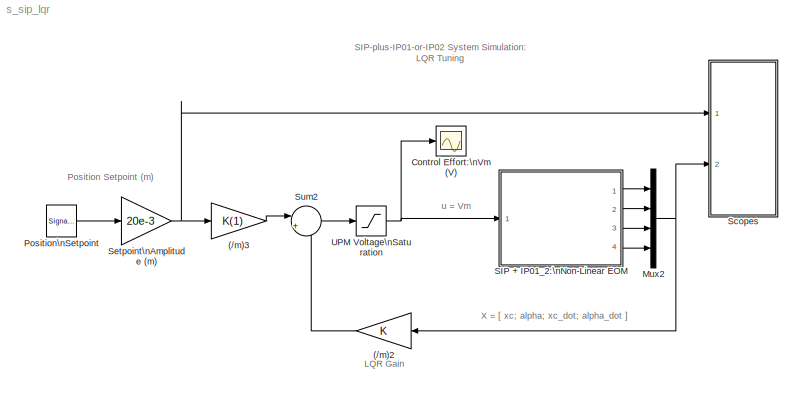
MODEL s_sip_lqr
KIND model
CONFIG AbsTol = 1e-6
CONFIG FixedStep = 0.001
CONFIG MaxStep = auto
CONFIG MinStep = auto
CONFIG RelTol = 1e-3
CONFIG Solver = ode4
CONFIG SolverMode = SingleTasking
CONFIG StartTime = 0.0
CONFIG StopTime = 5
BLOCK [Gain] (//m)2
  Gain = K
  Multiplication = Matrix(K*u)
  SaturateOnIntegerOverflow = on
BLOCK [Gain] (//m)3
  Gain = K(1)
  Multiplication = Element-wise(K.*u)
  SaturateOnIntegerOverflow = on
BLOCK [Scope] Control Effort:\nVm (V)
  DataFormat = Array
  Decimation = 1
  Floating = off
  Grid = on
  LimitDataPoints = on
  MaxDataPoints = 5000
  NumInputPorts = 1
  Ports = [1]
  SampleInput = off
  SampleTime = 0
  SaveName = ScopeData2
  SaveToWorkspace = off
  TickLabels = on
  TimeRange = 5
  YMax = 35
  YMin = -35
  ZoomMode = on
BLOCK [Mux] Mux2
  DisplayOption = bar
  Inputs = 4
  Ports = [4, 1]
BLOCK [SignalGenerator] Position\nSetpoint
  Amplitude = 1
  Frequency = 0.2
  Units = Hertz
  VectorParams1D = on
  WaveForm = square
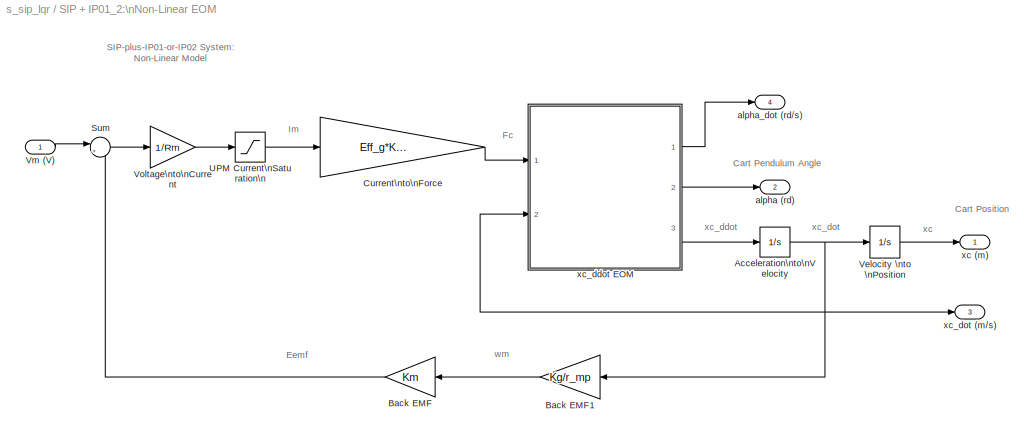
BLOCK [SubSystem] SIP + IP01_2:\nNon-Linear EOM
  Ports = [1, 4]
  RTWFcnNameOpts = Auto
  RTWFileNameOpts = Auto
  RTWSystemCode = Auto
  ShowPortLabels = on
  TreatAsAtomicUnit = off
BLOCK [Integrator] SIP + IP01_2:\nNon-Linear EOM/Acceleration\nto\nVelocity
  AbsoluteTolerance = auto
  ExternalReset = none
  InitialCondition = 0
  InitialConditionSource = internal
  LimitOutput = off
  LowerSaturationLimit = -inf
  Ports = [1, 1]
  ShowSaturationPort = off
  ShowStatePort = off
  UpperSaturationLimit = inf
BLOCK [Gain] SIP + IP01_2:\nNon-Linear EOM/Back EMF
  Gain = Km
  Multiplication = Element-wise(K.*u)
  SaturateOnIntegerOverflow = on
BLOCK [Gain] SIP + IP01_2:\nNon-Linear EOM/Back EMF1
  Gain = Kg/r_mp
  Multiplication = Element-wise(K.*u)
  SaturateOnIntegerOverflow = on
BLOCK [Gain] SIP + IP01_2:\nNon-Linear EOM/Current\nto\nForce
  Gain = Eff_g*Kg*Eff_m*Kt/r_mp
  Multiplication = Element-wise(K.*u)
  SaturateOnIntegerOverflow = on
BLOCK [Sum] SIP + IP01_2:\nNon-Linear EOM/Sum
  IconShape = round
  Inputs = |+-
  Ports = [2, 1]
  SaturateOnIntegerOverflow = on
BLOCK [Saturate] SIP + IP01_2:\nNon-Linear EOM/UPM Current\nSaturation\n
  LinearizeAsGain = on
  LowerLimit = - IMAX_UPM
  UpperLimit = IMAX_UPM
BLOCK [Integrator] SIP + IP01_2:\nNon-Linear EOM/Velocity \nto \nPosition
  AbsoluteTolerance = auto
  ExternalReset = none
  InitialCondition = 0
  InitialConditionSource = internal
  LimitOutput = off
  LowerSaturationLimit = -inf
  Ports = [1, 1]
  ShowSaturationPort = off
  ShowStatePort = off
  UpperSaturationLimit = inf
BLOCK [Inport] SIP + IP01_2:\nNon-Linear EOM/Vm (V)
  Interpolate = on
  LatchInput = off
  Port = 1
BLOCK [Gain] SIP + IP01_2:\nNon-Linear EOM/Voltage\nto\nCurrent
  Gain = 1/Rm
  Multiplication = Element-wise(K.*u)
  SaturateOnIntegerOverflow = on
BLOCK [Outport] SIP + IP01_2:\nNon-Linear EOM/alpha (rd)
  InitialOutput = []
  OutputWhenDisabled = held
  Port = 2
BLOCK [Outport] SIP + IP01_2:\nNon-Linear EOM/alpha_dot (rd//s)
  InitialOutput = 0
  OutputWhenDisabled = held
  Port = 4
BLOCK [Outport] SIP + IP01_2:\nNon-Linear EOM/xc (m)
  InitialOutput = []
  OutputWhenDisabled = held
  Port = 1
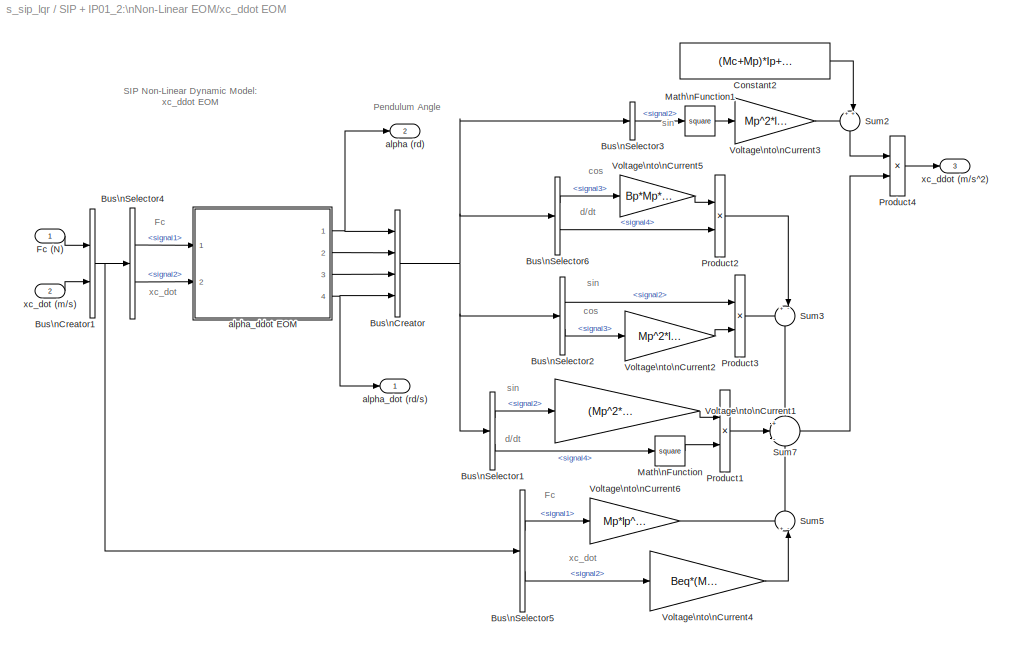
BLOCK [SubSystem] SIP + IP01_2:\nNon-Linear EOM/xc_ddot EOM
  Ports = [2, 3]
  RTWFcnNameOpts = Auto
  RTWFileNameOpts = Auto
  RTWSystemCode = Auto
  ShowPortLabels = on
  TreatAsAtomicUnit = off
BLOCK [BusCreator] SIP + IP01_2:\nNon-Linear EOM/xc_ddot EOM/Bus\nCreator
  DisplayOption = bar
  Inputs = 4
  Ports = [4, 1]
BLOCK [BusCreator] SIP + IP01_2:\nNon-Linear EOM/xc_ddot EOM/Bus\nCreator1
  DisplayOption = bar
  Inputs = 2
  Ports = [2, 1]
BLOCK [BusSelector] SIP + IP01_2:\nNon-Linear EOM/xc_ddot EOM/Bus\nSelector1
  MuxedOutput = off
  OutputSignals = signal2,signal4
  Ports = [1, 2]
BLOCK [BusSelector] SIP + IP01_2:\nNon-Linear EOM/xc_ddot EOM/Bus\nSelector2
  MuxedOutput = off
  OutputSignals = signal2,signal3
  Ports = [1, 2]
BLOCK [BusSelector] SIP + IP01_2:\nNon-Linear EOM/xc_ddot EOM/Bus\nSelector3
  MuxedOutput = off
  OutputSignals = signal2
  Ports = [1, 1]
BLOCK [BusSelector] SIP + IP01_2:\nNon-Linear EOM/xc_ddot EOM/Bus\nSelector4
  MuxedOutput = off
  OutputSignals = signal1,signal2
  Ports = [1, 2]
BLOCK [BusSelector] SIP + IP01_2:\nNon-Linear EOM/xc_ddot EOM/Bus\nSelector5
  MuxedOutput = off
  OutputSignals = signal1,signal2
  Ports = [1, 2]
BLOCK [BusSelector] SIP + IP01_2:\nNon-Linear EOM/xc_ddot EOM/Bus\nSelector6
  MuxedOutput = off
  OutputSignals = signal3,signal4
  Ports = [1, 2]
BLOCK [Constant] SIP + IP01_2:\nNon-Linear EOM/xc_ddot EOM/Constant2
  Value = (Mc+Mp)*Ip+Mc*Mp*lp^2
  VectorParams1D = on
BLOCK [Inport] SIP + IP01_2:\nNon-Linear EOM/xc_ddot EOM/Fc (N)
  Interpolate = on
  LatchInput = off
  Port = 1
BLOCK [Math] SIP + IP01_2:\nNon-Linear EOM/xc_ddot EOM/Math\nFunction
  Operator = square
  OutputSignalType = auto
  Ports = [1, 1]
BLOCK [Math] SIP + IP01_2:\nNon-Linear EOM/xc_ddot EOM/Math\nFunction1
  Operator = square
  OutputSignalType = auto
  Ports = [1, 1]
BLOCK [Product] SIP + IP01_2:\nNon-Linear EOM/xc_ddot EOM/Product1
  Inputs = 2
  Multiplication = Element-wise(.*)
  Ports = [2, 1]
  SaturateOnIntegerOverflow = on
BLOCK [Product] SIP + IP01_2:\nNon-Linear EOM/xc_ddot EOM/Product2
  Inputs = 2
  Multiplication = Element-wise(.*)
  Ports = [2, 1]
  SaturateOnIntegerOverflow = on
BLOCK [Product] SIP + IP01_2:\nNon-Linear EOM/xc_ddot EOM/Product3
  Inputs = 2
  Multiplication = Element-wise(.*)
  Ports = [2, 1]
  SaturateOnIntegerOverflow = on
BLOCK [Product] SIP + IP01_2:\nNon-Linear EOM/xc_ddot EOM/Product4
  Inputs = /*
  Multiplication = Element-wise(.*)
  Ports = [2, 1]
  SaturateOnIntegerOverflow = on
BLOCK [Sum] SIP + IP01_2:\nNon-Linear EOM/xc_ddot EOM/Sum2
  IconShape = round
  Inputs = ++|
  Ports = [2, 1]
  SaturateOnIntegerOverflow = on
BLOCK [Sum] SIP + IP01_2:\nNon-Linear EOM/xc_ddot EOM/Sum3
  IconShape = round
  Inputs = +-|
  Ports = [2, 1]
  SaturateOnIntegerOverflow = on
BLOCK [Sum] SIP + IP01_2:\nNon-Linear EOM/xc_ddot EOM/Sum5
  IconShape = round
  Inputs = +-|
  Ports = [2, 1]
  SaturateOnIntegerOverflow = on
BLOCK [Sum] SIP + IP01_2:\nNon-Linear EOM/xc_ddot EOM/Sum7
  IconShape = round
  Inputs = +|-|+
  Ports = [3, 1]
  SaturateOnIntegerOverflow = on
BLOCK [Gain] SIP + IP01_2:\nNon-Linear EOM/xc_ddot EOM/Voltage\nto\nCurrent1
  Gain = (Mp^2*lp^3+Ip*Mp*lp)
  Multiplication = Element-wise(K.*u)
  SaturateOnIntegerOverflow = on
BLOCK [Gain] SIP + IP01_2:\nNon-Linear EOM/xc_ddot EOM/Voltage\nto\nCurrent2
  Gain = Mp^2*lp^2*g
  Multiplication = Element-wise(K.*u)
  SaturateOnIntegerOverflow = on
BLOCK [Gain] SIP + IP01_2:\nNon-Linear EOM/xc_ddot EOM/Voltage\nto\nCurrent3
  Gain = Mp^2*lp^2
  Multiplication = Element-wise(K.*u)
  SaturateOnIntegerOverflow = on
BLOCK [Gain] SIP + IP01_2:\nNon-Linear EOM/xc_ddot EOM/Voltage\nto\nCurrent4
  Gain = Beq*(Mp*lp^2+Ip)
  Multiplication = Element-wise(K.*u)
  SaturateOnIntegerOverflow = on
BLOCK [Gain] SIP + IP01_2:\nNon-Linear EOM/xc_ddot EOM/Voltage\nto\nCurrent5
  Gain = Bp*Mp*lp
  Multiplication = Element-wise(K.*u)
  SaturateOnIntegerOverflow = on
BLOCK [Gain] SIP + IP01_2:\nNon-Linear EOM/xc_ddot EOM/Voltage\nto\nCurrent6
  Gain = Mp*lp^2+Ip
  Multiplication = Element-wise(K.*u)
  SaturateOnIntegerOverflow = on
BLOCK [Outport] SIP + IP01_2:\nNon-Linear EOM/xc_ddot EOM/alpha (rd)
  InitialOutput = []
  OutputWhenDisabled = held
  Port = 2
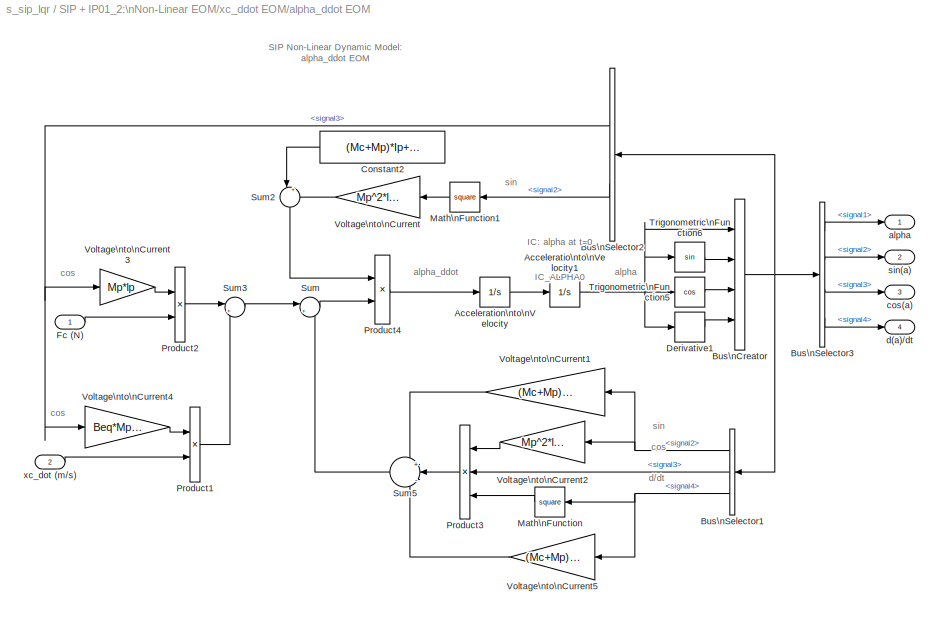
BLOCK [SubSystem] SIP + IP01_2:\nNon-Linear EOM/xc_ddot EOM/alpha_ddot EOM
  Ports = [2, 4]
  RTWFcnNameOpts = Auto
  RTWFileNameOpts = Auto
  RTWSystemCode = Auto
  ShowPortLabels = on
  TreatAsAtomicUnit = off
BLOCK [Integrator] SIP + IP01_2:\nNon-Linear EOM/xc_ddot EOM/alpha_ddot EOM/Acceleratio\nto\nVelocity1
  AbsoluteTolerance = auto
  ExternalReset = none
  InitialCondition = IC_ALPHA0
  InitialConditionSource = internal
  LimitOutput = off
  LowerSaturationLimit = -inf
  Ports = [1, 1]
  ShowSaturationPort = off
  ShowStatePort = off
  UpperSaturationLimit = inf
BLOCK [Integrator] SIP + IP01_2:\nNon-Linear EOM/xc_ddot EOM/alpha_ddot EOM/Acceleration\nto\nVelocity
  AbsoluteTolerance = auto
  ExternalReset = none
  InitialCondition = 0
  InitialConditionSource = internal
  LimitOutput = off
  LowerSaturationLimit = -inf
  Ports = [1, 1]
  ShowSaturationPort = off
  ShowStatePort = off
  UpperSaturationLimit = inf
BLOCK [BusCreator] SIP + IP01_2:\nNon-Linear EOM/xc_ddot EOM/alpha_ddot EOM/Bus\nCreator
  DisplayOption = bar
  Inputs = 4
  Ports = [4, 1]
BLOCK [BusSelector] SIP + IP01_2:\nNon-Linear EOM/xc_ddot EOM/alpha_ddot EOM/Bus\nSelector1
  MuxedOutput = off
  OutputSignals = signal2,signal3,signal4
  Ports = [1, 3]
BLOCK [BusSelector] SIP + IP01_2:\nNon-Linear EOM/xc_ddot EOM/alpha_ddot EOM/Bus\nSelector2
  MuxedOutput = off
  OutputSignals = signal3,signal2
  Ports = [1, 2]
BLOCK [BusSelector] SIP + IP01_2:\nNon-Linear EOM/xc_ddot EOM/alpha_ddot EOM/Bus\nSelector3
  MuxedOutput = off
  OutputSignals = signal1,signal2,signal3,signal4
  Ports = [1, 4]
BLOCK [Constant] SIP + IP01_2:\nNon-Linear EOM/xc_ddot EOM/alpha_ddot EOM/Constant2
  Value = (Mc+Mp)*Ip+Mc*Mp*lp^2
  VectorParams1D = on
BLOCK [Derivative] SIP + IP01_2:\nNon-Linear EOM/xc_ddot EOM/alpha_ddot EOM/Derivative1
BLOCK [Inport] SIP + IP01_2:\nNon-Linear EOM/xc_ddot EOM/alpha_ddot EOM/Fc (N)
  Interpolate = on
  LatchInput = off
  Port = 1
BLOCK [Math] SIP + IP01_2:\nNon-Linear EOM/xc_ddot EOM/alpha_ddot EOM/Math\nFunction
  Operator = square
  OutputSignalType = auto
  Ports = [1, 1]
BLOCK [Math] SIP + IP01_2:\nNon-Linear EOM/xc_ddot EOM/alpha_ddot EOM/Math\nFunction1
  Operator = square
  OutputSignalType = auto
  Ports = [1, 1]
BLOCK [Product] SIP + IP01_2:\nNon-Linear EOM/xc_ddot EOM/alpha_ddot EOM/Product1
  Inputs = 2
  Multiplication = Element-wise(.*)
  Ports = [2, 1]
  SaturateOnIntegerOverflow = on
BLOCK [Product] SIP + IP01_2:\nNon-Linear EOM/xc_ddot EOM/alpha_ddot EOM/Product2
  Inputs = 2
  Multiplication = Element-wise(.*)
  Ports = [2, 1]
  SaturateOnIntegerOverflow = on
BLOCK [Product] SIP + IP01_2:\nNon-Linear EOM/xc_ddot EOM/alpha_ddot EOM/Product3
  Inputs = 3
  Multiplication = Element-wise(.*)
  Ports = [3, 1]
  SaturateOnIntegerOverflow = on
BLOCK [Product] SIP + IP01_2:\nNon-Linear EOM/xc_ddot EOM/alpha_ddot EOM/Product4
  Inputs = /*
  Multiplication = Element-wise(.*)
  Ports = [2, 1]
  SaturateOnIntegerOverflow = on
BLOCK [Sum] SIP + IP01_2:\nNon-Linear EOM/xc_ddot EOM/alpha_ddot EOM/Sum
  IconShape = round
  Inputs = |++
  Ports = [2, 1]
  SaturateOnIntegerOverflow = on
BLOCK [Sum] SIP + IP01_2:\nNon-Linear EOM/xc_ddot EOM/alpha_ddot EOM/Sum2
  IconShape = round
  Inputs = |++
  Ports = [2, 1]
  SaturateOnIntegerOverflow = on
BLOCK [Sum] SIP + IP01_2:\nNon-Linear EOM/xc_ddot EOM/alpha_ddot EOM/Sum3
  IconShape = round
  Inputs = |+-
  Ports = [2, 1]
  SaturateOnIntegerOverflow = on
BLOCK [Sum] SIP + IP01_2:\nNon-Linear EOM/xc_ddot EOM/alpha_ddot EOM/Sum5
  IconShape = round
  Inputs = +|-|-
  Ports = [3, 1]
  SaturateOnIntegerOverflow = on
BLOCK [Trigonometry] SIP + IP01_2:\nNon-Linear EOM/xc_ddot EOM/alpha_ddot EOM/Trigonometric\nFunction5
  Operator = cos
  OutputSignalType = auto
  Ports = [1, 1]
BLOCK [Trigonometry] SIP + IP01_2:\nNon-Linear EOM/xc_ddot EOM/alpha_ddot EOM/Trigonometric\nFunction6
  Operator = sin
  OutputSignalType = auto
  Ports = [1, 1]
BLOCK [Gain] SIP + IP01_2:\nNon-Linear EOM/xc_ddot EOM/alpha_ddot EOM/Voltage\nto\nCurrent
  Gain = Mp^2*lp^2
  Multiplication = Element-wise(K.*u)
  SaturateOnIntegerOverflow = on
BLOCK [Gain] SIP + IP01_2:\nNon-Linear EOM/xc_ddot EOM/alpha_ddot EOM/Voltage\nto\nCurrent1
  Gain = (Mc+Mp)*Mp*lp*g
  Multiplication = Element-wise(K.*u)
  SaturateOnIntegerOverflow = on
BLOCK [Gain] SIP + IP01_2:\nNon-Linear EOM/xc_ddot EOM/alpha_ddot EOM/Voltage\nto\nCurrent2
  Gain = Mp^2*lp^2
  Multiplication = Element-wise(K.*u)
  SaturateOnIntegerOverflow = on
BLOCK [Gain] SIP + IP01_2:\nNon-Linear EOM/xc_ddot EOM/alpha_ddot EOM/Voltage\nto\nCurrent3
  Gain = Mp*lp
  Multiplication = Element-wise(K.*u)
  SaturateOnIntegerOverflow = on
BLOCK [Gain] SIP + IP01_2:\nNon-Linear EOM/xc_ddot EOM/alpha_ddot EOM/Voltage\nto\nCurrent4
  Gain = Beq*Mp*lp
  Multiplication = Element-wise(K.*u)
  SaturateOnIntegerOverflow = on
BLOCK [Gain] SIP + IP01_2:\nNon-Linear EOM/xc_ddot EOM/alpha_ddot EOM/Voltage\nto\nCurrent5
  Gain = (Mc+Mp)*Bp
  Multiplication = Element-wise(K.*u)
  SaturateOnIntegerOverflow = on
BLOCK [Outport] SIP + IP01_2:\nNon-Linear EOM/xc_ddot EOM/alpha_ddot EOM/alpha
  InitialOutput = 0
  OutputWhenDisabled = held
  Port = 1
BLOCK [Outport] SIP + IP01_2:\nNon-Linear EOM/xc_ddot EOM/alpha_ddot EOM/cos(a)
  InitialOutput = 0
  OutputWhenDisabled = held
  Port = 3
BLOCK [Outport] SIP + IP01_2:\nNon-Linear EOM/xc_ddot EOM/alpha_ddot EOM/d(a)//dt
  InitialOutput = 0
  OutputWhenDisabled = held
  Port = 4
BLOCK [Outport] SIP + IP01_2:\nNon-Linear EOM/xc_ddot EOM/alpha_ddot EOM/sin(a)
  InitialOutput = 0
  OutputWhenDisabled = held
  Port = 2
BLOCK [Inport] SIP + IP01_2:\nNon-Linear EOM/xc_ddot EOM/alpha_ddot EOM/xc_dot (m//s)
  Interpolate = on
  LatchInput = off
  Port = 2
BLOCK [Outport] SIP + IP01_2:\nNon-Linear EOM/xc_ddot EOM/alpha_dot (rd//s)
  InitialOutput = []
  OutputWhenDisabled = held
  Port = 1
BLOCK [Outport] SIP + IP01_2:\nNon-Linear EOM/xc_ddot EOM/xc_ddot (m//s^2)
  InitialOutput = []
  OutputWhenDisabled = held
  Port = 3
BLOCK [Inport] SIP + IP01_2:\nNon-Linear EOM/xc_ddot EOM/xc_dot (m//s)
  Interpolate = on
  LatchInput = off
  Port = 2
BLOCK [Outport] SIP + IP01_2:\nNon-Linear EOM/xc_dot (m//s)
  InitialOutput = 0
  OutputWhenDisabled = held
  Port = 3
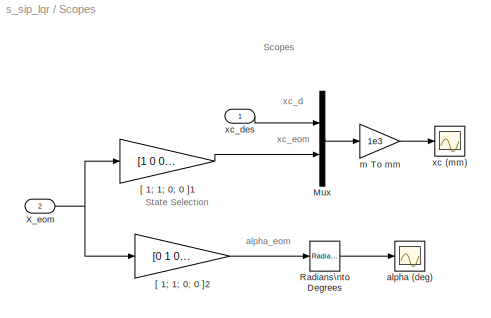
BLOCK [SubSystem] Scopes
  Ports = [2]
  RTWFcnNameOpts = Auto
  RTWFileNameOpts = Auto
  RTWSystemCode = Auto
  ShowPortLabels = on
  TreatAsAtomicUnit = off
BLOCK [Mux] Scopes/Mux
  DisplayOption = bar
  Inputs = 2
  Ports = [2, 1]
BLOCK [Reference] Scopes/Radians\nto Degrees  REF=simulink_extras/Transformations/Radians\nto Degrees
  Ports = [1, 1]
  SourceBlock = simulink_extras/Transformations/Radians\nto Degrees
  SourceType = RadiansToDegrees
BLOCK [Inport] Scopes/X_eom
  Interpolate = on
  LatchInput = off
  Port = 2
BLOCK [Gain] Scopes/[ 1; 1; 0; 0 ]1
  Gain = [1 0 0 0]
  Multiplication = Matrix(K*u)
  SaturateOnIntegerOverflow = on
BLOCK [Gain] Scopes/[ 1; 1; 0; 0 ]2
  Gain = [0 1 0 0]
  Multiplication = Matrix(K*u)
  SaturateOnIntegerOverflow = on
BLOCK [Scope] Scopes/alpha (deg)
  DataFormat = Array
  Decimation = 1
  Floating = off
  Grid = on
  LimitDataPoints = on
  MaxDataPoints = 5000
  NumInputPorts = 1
  Ports = [1]
  SampleInput = off
  SampleTime = 0
  SaveName = ScopeData
  SaveToWorkspace = off
  TickLabels = on
  TimeRange = 5
  YMax = 1
  YMin = -1
  ZoomMode = on
BLOCK [Gain] Scopes/m To mm
  Gain = 1e3
  Multiplication = Element-wise(K.*u)
  SaturateOnIntegerOverflow = on
BLOCK [Scope] Scopes/xc (mm)
  DataFormat = Array
  Decimation = 1
  Floating = off
  Grid = on
  LimitDataPoints = on
  MaxDataPoints = 5000
  NumInputPorts = 1
  Ports = [1]
  SampleInput = off
  SampleTime = 0
  SaveName = ScopeData1
  SaveToWorkspace = off
  TickLabels = on
  TimeRange = 5
  YMax = 35
  YMin = -35
  ZoomMode = on
BLOCK [Inport] Scopes/xc_des
  Interpolate = on
  LatchInput = off
  Port = 1
BLOCK [Gain] Setpoint\nAmplitude (m)
  Gain = 20e-3
  Multiplication = Element-wise(K.*u)
  SaturateOnIntegerOverflow = on
BLOCK [Sum] Sum2
  IconShape = round
  Inputs = |+-
  Ports = [2, 1]
  SaturateOnIntegerOverflow = on
BLOCK [Saturate] UPM Voltage\nSaturation
  LinearizeAsGain = on
  LowerLimit = - VMAX_UPM
  UpperLimit = VMAX_UPM
LINE (//m)2:1 -> Sum2:2
LINE (//m)3:1 -> Sum2:1
NET Mux2:1 -> (//m)2:1, Scopes:2
LINE Position\nSetpoint:1 -> Setpoint\nAmplitude (m):1
NET SIP + IP01_2:\nNon-Linear EOM/Acceleration\nto\nVelocity:1 -> SIP + IP01_2:\nNon-Linear EOM/Back EMF1:1, SIP + IP01_2:\nNon-Linear EOM/Velocity \nto \nPosition:1, SIP + IP01_2:\nNon-Linear EOM/xc_ddot EOM:2, SIP + IP01_2:\nNon-Linear EOM/xc_dot (m//s):1
LINE SIP + IP01_2:\nNon-Linear EOM/Back EMF1:1 -> SIP + IP01_2:\nNon-Linear EOM/Back EMF:1
LINE SIP + IP01_2:\nNon-Linear EOM/Back EMF:1 -> SIP + IP01_2:\nNon-Linear EOM/Sum:2
LINE SIP + IP01_2:\nNon-Linear EOM/Current\nto\nForce:1 -> SIP + IP01_2:\nNon-Linear EOM/xc_ddot EOM:1
LINE SIP + IP01_2:\nNon-Linear EOM/Sum:1 -> SIP + IP01_2:\nNon-Linear EOM/Voltage\nto\nCurrent:1
LINE SIP + IP01_2:\nNon-Linear EOM/UPM Current\nSaturation\n:1 -> SIP + IP01_2:\nNon-Linear EOM/Current\nto\nForce:1
LINE SIP + IP01_2:\nNon-Linear EOM/Velocity \nto \nPosition:1 -> SIP + IP01_2:\nNon-Linear EOM/xc (m):1
LINE SIP + IP01_2:\nNon-Linear EOM/Vm (V):1 -> SIP + IP01_2:\nNon-Linear EOM/Sum:1
LINE SIP + IP01_2:\nNon-Linear EOM/Voltage\nto\nCurrent:1 -> SIP + IP01_2:\nNon-Linear EOM/UPM Current\nSaturation\n:1
NET SIP + IP01_2:\nNon-Linear EOM/xc_ddot EOM/Bus\nCreator1:1 -> SIP + IP01_2:\nNon-Linear EOM/xc_ddot EOM/Bus\nSelector4:1, SIP + IP01_2:\nNon-Linear EOM/xc_ddot EOM/Bus\nSelector5:1
NET SIP + IP01_2:\nNon-Linear EOM/xc_ddot EOM/Bus\nCreator:1 -> SIP + IP01_2:\nNon-Linear EOM/xc_ddot EOM/Bus\nSelector1:1, SIP + IP01_2:\nNon-Linear EOM/xc_ddot EOM/Bus\nSelector2:1, SIP + IP01_2:\nNon-Linear EOM/xc_ddot EOM/Bus\nSelector3:1, SIP + IP01_2:\nNon-Linear EOM/xc_ddot EOM/Bus\nSelector6:1
LINE SIP + IP01_2:\nNon-Linear EOM/xc_ddot EOM/Bus\nSelector1:1 -> SIP + IP01_2:\nNon-Linear EOM/xc_ddot EOM/Voltage\nto\nCurrent1:1
LINE SIP + IP01_2:\nNon-Linear EOM/xc_ddot EOM/Bus\nSelector1:2 -> SIP + IP01_2:\nNon-Linear EOM/xc_ddot EOM/Math\nFunction:1
LINE SIP + IP01_2:\nNon-Linear EOM/xc_ddot EOM/Bus\nSelector2:1 -> SIP + IP01_2:\nNon-Linear EOM/xc_ddot EOM/Product3:1
LINE SIP + IP01_2:\nNon-Linear EOM/xc_ddot EOM/Bus\nSelector2:2 -> SIP + IP01_2:\nNon-Linear EOM/xc_ddot EOM/Voltage\nto\nCurrent2:1
LINE SIP + IP01_2:\nNon-Linear EOM/xc_ddot EOM/Bus\nSelector3:1 -> SIP + IP01_2:\nNon-Linear EOM/xc_ddot EOM/Math\nFunction1:1
LINE SIP + IP01_2:\nNon-Linear EOM/xc_ddot EOM/Bus\nSelector4:1 -> SIP + IP01_2:\nNon-Linear EOM/xc_ddot EOM/alpha_ddot EOM:1
LINE SIP + IP01_2:\nNon-Linear EOM/xc_ddot EOM/Bus\nSelector4:2 -> SIP + IP01_2:\nNon-Linear EOM/xc_ddot EOM/alpha_ddot EOM:2
LINE SIP + IP01_2:\nNon-Linear EOM/xc_ddot EOM/Bus\nSelector5:1 -> SIP + IP01_2:\nNon-Linear EOM/xc_ddot EOM/Voltage\nto\nCurrent6:1
LINE SIP + IP01_2:\nNon-Linear EOM/xc_ddot EOM/Bus\nSelector5:2 -> SIP + IP01_2:\nNon-Linear EOM/xc_ddot EOM/Voltage\nto\nCurrent4:1
LINE SIP + IP01_2:\nNon-Linear EOM/xc_ddot EOM/Bus\nSelector6:1 -> SIP + IP01_2:\nNon-Linear EOM/xc_ddot EOM/Voltage\nto\nCurrent5:1
LINE SIP + IP01_2:\nNon-Linear EOM/xc_ddot EOM/Bus\nSelector6:2 -> SIP + IP01_2:\nNon-Linear EOM/xc_ddot EOM/Product2:2
LINE SIP + IP01_2:\nNon-Linear EOM/xc_ddot EOM/Constant2:1 -> SIP + IP01_2:\nNon-Linear EOM/xc_ddot EOM/Sum2:2
LINE SIP + IP01_2:\nNon-Linear EOM/xc_ddot EOM/Fc (N):1 -> SIP + IP01_2:\nNon-Linear EOM/xc_ddot EOM/Bus\nCreator1:1
LINE SIP + IP01_2:\nNon-Linear EOM/xc_ddot EOM/Math\nFunction1:1 -> SIP + IP01_2:\nNon-Linear EOM/xc_ddot EOM/Voltage\nto\nCurrent3:1
LINE SIP + IP01_2:\nNon-Linear EOM/xc_ddot EOM/Math\nFunction:1 -> SIP + IP01_2:\nNon-Linear EOM/xc_ddot EOM/Product1:2
LINE SIP + IP01_2:\nNon-Linear EOM/xc_ddot EOM/Product1:1 -> SIP + IP01_2:\nNon-Linear EOM/xc_ddot EOM/Sum7:2
LINE SIP + IP01_2:\nNon-Linear EOM/xc_ddot EOM/Product2:1 -> SIP + IP01_2:\nNon-Linear EOM/xc_ddot EOM/Sum3:2
LINE SIP + IP01_2:\nNon-Linear EOM/xc_ddot EOM/Product3:1 -> SIP + IP01_2:\nNon-Linear EOM/xc_ddot EOM/Sum3:1
LINE SIP + IP01_2:\nNon-Linear EOM/xc_ddot EOM/Product4:1 -> SIP + IP01_2:\nNon-Linear EOM/xc_ddot EOM/xc_ddot (m//s^2):1
LINE SIP + IP01_2:\nNon-Linear EOM/xc_ddot EOM/Sum2:1 -> SIP + IP01_2:\nNon-Linear EOM/xc_ddot EOM/Product4:1
LINE SIP + IP01_2:\nNon-Linear EOM/xc_ddot EOM/Sum3:1 -> SIP + IP01_2:\nNon-Linear EOM/xc_ddot EOM/Sum7:1
LINE SIP + IP01_2:\nNon-Linear EOM/xc_ddot EOM/Sum5:1 -> SIP + IP01_2:\nNon-Linear EOM/xc_ddot EOM/Sum7:3
LINE SIP + IP01_2:\nNon-Linear EOM/xc_ddot EOM/Sum7:1 -> SIP + IP01_2:\nNon-Linear EOM/xc_ddot EOM/Product4:2
LINE SIP + IP01_2:\nNon-Linear EOM/xc_ddot EOM/Voltage\nto\nCurrent1:1 -> SIP + IP01_2:\nNon-Linear EOM/xc_ddot EOM/Product1:1
LINE SIP + IP01_2:\nNon-Linear EOM/xc_ddot EOM/Voltage\nto\nCurrent2:1 -> SIP + IP01_2:\nNon-Linear EOM/xc_ddot EOM/Product3:2
LINE SIP + IP01_2:\nNon-Linear EOM/xc_ddot EOM/Voltage\nto\nCurrent3:1 -> SIP + IP01_2:\nNon-Linear EOM/xc_ddot EOM/Sum2:1
LINE SIP + IP01_2:\nNon-Linear EOM/xc_ddot EOM/Voltage\nto\nCurrent4:1 -> SIP + IP01_2:\nNon-Linear EOM/xc_ddot EOM/Sum5:2
LINE SIP + IP01_2:\nNon-Linear EOM/xc_ddot EOM/Voltage\nto\nCurrent5:1 -> SIP + IP01_2:\nNon-Linear EOM/xc_ddot EOM/Product2:1
LINE SIP + IP01_2:\nNon-Linear EOM/xc_ddot EOM/Voltage\nto\nCurrent6:1 -> SIP + IP01_2:\nNon-Linear EOM/xc_ddot EOM/Sum5:1
NET SIP + IP01_2:\nNon-Linear EOM/xc_ddot EOM/alpha_ddot EOM/Acceleratio\nto\nVelocity1:1 -> SIP + IP01_2:\nNon-Linear EOM/xc_ddot EOM/alpha_ddot EOM/Bus\nCreator:1, SIP + IP01_2:\nNon-Linear EOM/xc_ddot EOM/alpha_ddot EOM/Derivative1:1, SIP + IP01_2:\nNon-Linear EOM/xc_ddot EOM/alpha_ddot EOM/Trigonometric\nFunction5:1, SIP + IP01_2:\nNon-Linear EOM/xc_ddot EOM/alpha_ddot EOM/Trigonometric\nFunction6:1
LINE SIP + IP01_2:\nNon-Linear EOM/xc_ddot EOM/alpha_ddot EOM/Acceleration\nto\nVelocity:1 -> SIP + IP01_2:\nNon-Linear EOM/xc_ddot EOM/alpha_ddot EOM/Acceleratio\nto\nVelocity1:1
NET SIP + IP01_2:\nNon-Linear EOM/xc_ddot EOM/alpha_ddot EOM/Bus\nCreator:1 -> SIP + IP01_2:\nNon-Linear EOM/xc_ddot EOM/alpha_ddot EOM/Bus\nSelector1:1, SIP + IP01_2:\nNon-Linear EOM/xc_ddot EOM/alpha_ddot EOM/Bus\nSelector2:1, SIP + IP01_2:\nNon-Linear EOM/xc_ddot EOM/alpha_ddot EOM/Bus\nSelector3:1
NET SIP + IP01_2:\nNon-Linear EOM/xc_ddot EOM/alpha_ddot EOM/Bus\nSelector1:1 -> SIP + IP01_2:\nNon-Linear EOM/xc_ddot EOM/alpha_ddot EOM/Voltage\nto\nCurrent1:1, SIP + IP01_2:\nNon-Linear EOM/xc_ddot EOM/alpha_ddot EOM/Voltage\nto\nCurrent2:1
LINE SIP + IP01_2:\nNon-Linear EOM/xc_ddot EOM/alpha_ddot EOM/Bus\nSelector1:2 -> SIP + IP01_2:\nNon-Linear EOM/xc_ddot EOM/alpha_ddot EOM/Product3:2
NET SIP + IP01_2:\nNon-Linear EOM/xc_ddot EOM/alpha_ddot EOM/Bus\nSelector1:3 -> SIP + IP01_2:\nNon-Linear EOM/xc_ddot EOM/alpha_ddot EOM/Math\nFunction:1, SIP + IP01_2:\nNon-Linear EOM/xc_ddot EOM/alpha_ddot EOM/Voltage\nto\nCurrent5:1
NET SIP + IP01_2:\nNon-Linear EOM/xc_ddot EOM/alpha_ddot EOM/Bus\nSelector2:1 -> SIP + IP01_2:\nNon-Linear EOM/xc_ddot EOM/alpha_ddot EOM/Voltage\nto\nCurrent3:1, SIP + IP01_2:\nNon-Linear EOM/xc_ddot EOM/alpha_ddot EOM/Voltage\nto\nCurrent4:1
LINE SIP + IP01_2:\nNon-Linear EOM/xc_ddot EOM/alpha_ddot EOM/Bus\nSelector2:2 -> SIP + IP01_2:\nNon-Linear EOM/xc_ddot EOM/alpha_ddot EOM/Math\nFunction1:1
LINE SIP + IP01_2:\nNon-Linear EOM/xc_ddot EOM/alpha_ddot EOM/Bus\nSelector3:1 -> SIP + IP01_2:\nNon-Linear EOM/xc_ddot EOM/alpha_ddot EOM/alpha:1
LINE SIP + IP01_2:\nNon-Linear EOM/xc_ddot EOM/alpha_ddot EOM/Bus\nSelector3:2 -> SIP + IP01_2:\nNon-Linear EOM/xc_ddot EOM/alpha_ddot EOM/sin(a):1
LINE SIP + IP01_2:\nNon-Linear EOM/xc_ddot EOM/alpha_ddot EOM/Bus\nSelector3:3 -> SIP + IP01_2:\nNon-Linear EOM/xc_ddot EOM/alpha_ddot EOM/cos(a):1
LINE SIP + IP01_2:\nNon-Linear EOM/xc_ddot EOM/alpha_ddot EOM/Bus\nSelector3:4 -> SIP + IP01_2:\nNon-Linear EOM/xc_ddot EOM/alpha_ddot EOM/d(a)//dt:1
LINE SIP + IP01_2:\nNon-Linear EOM/xc_ddot EOM/alpha_ddot EOM/Constant2:1 -> SIP + IP01_2:\nNon-Linear EOM/xc_ddot EOM/alpha_ddot EOM/Sum2:1
LINE SIP + IP01_2:\nNon-Linear EOM/xc_ddot EOM/alpha_ddot EOM/Derivative1:1 -> SIP + IP01_2:\nNon-Linear EOM/xc_ddot EOM/alpha_ddot EOM/Bus\nCreator:4
LINE SIP + IP01_2:\nNon-Linear EOM/xc_ddot EOM/alpha_ddot EOM/Fc (N):1 -> SIP + IP01_2:\nNon-Linear EOM/xc_ddot EOM/alpha_ddot EOM/Product2:2
LINE SIP + IP01_2:\nNon-Linear EOM/xc_ddot EOM/alpha_ddot EOM/Math\nFunction1:1 -> SIP + IP01_2:\nNon-Linear EOM/xc_ddot EOM/alpha_ddot EOM/Voltage\nto\nCurrent:1
LINE SIP + IP01_2:\nNon-Linear EOM/xc_ddot EOM/alpha_ddot EOM/Math\nFunction:1 -> SIP + IP01_2:\nNon-Linear EOM/xc_ddot EOM/alpha_ddot EOM/Product3:3
LINE SIP + IP01_2:\nNon-Linear EOM/xc_ddot EOM/alpha_ddot EOM/Product1:1 -> SIP + IP01_2:\nNon-Linear EOM/xc_ddot EOM/alpha_ddot EOM/Sum3:2
LINE SIP + IP01_2:\nNon-Linear EOM/xc_ddot EOM/alpha_ddot EOM/Product2:1 -> SIP + IP01_2:\nNon-Linear EOM/xc_ddot EOM/alpha_ddot EOM/Sum3:1
LINE SIP + IP01_2:\nNon-Linear EOM/xc_ddot EOM/alpha_ddot EOM/Product3:1 -> SIP + IP01_2:\nNon-Linear EOM/xc_ddot EOM/alpha_ddot EOM/Sum5:2
LINE SIP + IP01_2:\nNon-Linear EOM/xc_ddot EOM/alpha_ddot EOM/Product4:1 -> SIP + IP01_2:\nNon-Linear EOM/xc_ddot EOM/alpha_ddot EOM/Acceleration\nto\nVelocity:1
LINE SIP + IP01_2:\nNon-Linear EOM/xc_ddot EOM/alpha_ddot EOM/Sum2:1 -> SIP + IP01_2:\nNon-Linear EOM/xc_ddot EOM/alpha_ddot EOM/Product4:1
LINE SIP + IP01_2:\nNon-Linear EOM/xc_ddot EOM/alpha_ddot EOM/Sum3:1 -> SIP + IP01_2:\nNon-Linear EOM/xc_ddot EOM/alpha_ddot EOM/Sum:1
LINE SIP + IP01_2:\nNon-Linear EOM/xc_ddot EOM/alpha_ddot EOM/Sum5:1 -> SIP + IP01_2:\nNon-Linear EOM/xc_ddot EOM/alpha_ddot EOM/Sum:2
LINE SIP + IP01_2:\nNon-Linear EOM/xc_ddot EOM/alpha_ddot EOM/Sum:1 -> SIP + IP01_2:\nNon-Linear EOM/xc_ddot EOM/alpha_ddot EOM/Product4:2
LINE SIP + IP01_2:\nNon-Linear EOM/xc_ddot EOM/alpha_ddot EOM/Trigonometric\nFunction5:1 -> SIP + IP01_2:\nNon-Linear EOM/xc_ddot EOM/alpha_ddot EOM/Bus\nCreator:3
LINE SIP + IP01_2:\nNon-Linear EOM/xc_ddot EOM/alpha_ddot EOM/Trigonometric\nFunction6:1 -> SIP + IP01_2:\nNon-Linear EOM/xc_ddot EOM/alpha_ddot EOM/Bus\nCreator:2
LINE SIP + IP01_2:\nNon-Linear EOM/xc_ddot EOM/alpha_ddot EOM/Voltage\nto\nCurrent1:1 -> SIP + IP01_2:\nNon-Linear EOM/xc_ddot EOM/alpha_ddot EOM/Sum5:1
LINE SIP + IP01_2:\nNon-Linear EOM/xc_ddot EOM/alpha_ddot EOM/Voltage\nto\nCurrent2:1 -> SIP + IP01_2:\nNon-Linear EOM/xc_ddot EOM/alpha_ddot EOM/Product3:1
LINE SIP + IP01_2:\nNon-Linear EOM/xc_ddot EOM/alpha_ddot EOM/Voltage\nto\nCurrent3:1 -> SIP + IP01_2:\nNon-Linear EOM/xc_ddot EOM/alpha_ddot EOM/Product2:1
LINE SIP + IP01_2:\nNon-Linear EOM/xc_ddot EOM/alpha_ddot EOM/Voltage\nto\nCurrent4:1 -> SIP + IP01_2:\nNon-Linear EOM/xc_ddot EOM/alpha_ddot EOM/Product1:1
LINE SIP + IP01_2:\nNon-Linear EOM/xc_ddot EOM/alpha_ddot EOM/Voltage\nto\nCurrent5:1 -> SIP + IP01_2:\nNon-Linear EOM/xc_ddot EOM/alpha_ddot EOM/Sum5:3
LINE SIP + IP01_2:\nNon-Linear EOM/xc_ddot EOM/alpha_ddot EOM/Voltage\nto\nCurrent:1 -> SIP + IP01_2:\nNon-Linear EOM/xc_ddot EOM/alpha_ddot EOM/Sum2:2
LINE SIP + IP01_2:\nNon-Linear EOM/xc_ddot EOM/alpha_ddot EOM/xc_dot (m//s):1 -> SIP + IP01_2:\nNon-Linear EOM/xc_ddot EOM/alpha_ddot EOM/Product1:2
NET SIP + IP01_2:\nNon-Linear EOM/xc_ddot EOM/alpha_ddot EOM:1 -> SIP + IP01_2:\nNon-Linear EOM/xc_ddot EOM/Bus\nCreator:1, SIP + IP01_2:\nNon-Linear EOM/xc_ddot EOM/alpha (rd):1
LINE SIP + IP01_2:\nNon-Linear EOM/xc_ddot EOM/alpha_ddot EOM:2 -> SIP + IP01_2:\nNon-Linear EOM/xc_ddot EOM/Bus\nCreator:2
LINE SIP + IP01_2:\nNon-Linear EOM/xc_ddot EOM/alpha_ddot EOM:3 -> SIP + IP01_2:\nNon-Linear EOM/xc_ddot EOM/Bus\nCreator:3
NET SIP + IP01_2:\nNon-Linear EOM/xc_ddot EOM/alpha_ddot EOM:4 -> SIP + IP01_2:\nNon-Linear EOM/xc_ddot EOM/Bus\nCreator:4, SIP + IP01_2:\nNon-Linear EOM/xc_ddot EOM/alpha_dot (rd//s):1
LINE SIP + IP01_2:\nNon-Linear EOM/xc_ddot EOM/xc_dot (m//s):1 -> SIP + IP01_2:\nNon-Linear EOM/xc_ddot EOM/Bus\nCreator1:2
LINE SIP + IP01_2:\nNon-Linear EOM/xc_ddot EOM:1 -> SIP + IP01_2:\nNon-Linear EOM/alpha_dot (rd//s):1
LINE SIP + IP01_2:\nNon-Linear EOM/xc_ddot EOM:2 -> SIP + IP01_2:\nNon-Linear EOM/alpha (rd):1
LINE SIP + IP01_2:\nNon-Linear EOM/xc_ddot EOM:3 -> SIP + IP01_2:\nNon-Linear EOM/Acceleration\nto\nVelocity:1
LINE SIP + IP01_2:\nNon-Linear EOM:1 -> Mux2:1
LINE SIP + IP01_2:\nNon-Linear EOM:2 -> Mux2:2
LINE SIP + IP01_2:\nNon-Linear EOM:3 -> Mux2:3
LINE SIP + IP01_2:\nNon-Linear EOM:4 -> Mux2:4
LINE Scopes/Mux:1 -> Scopes/m To mm:1
LINE Scopes/Radians\nto Degrees:1 -> Scopes/alpha (deg):1
NET Scopes/X_eom:1 -> Scopes/[ 1; 1; 0; 0 ]1:1, Scopes/[ 1; 1; 0; 0 ]2:1
LINE Scopes/[ 1; 1; 0; 0 ]1:1 -> Scopes/Mux:2
LINE Scopes/[ 1; 1; 0; 0 ]2:1 -> Scopes/Radians\nto Degrees:1
LINE Scopes/m To mm:1 -> Scopes/xc (mm):1
LINE Scopes/xc_des:1 -> Scopes/Mux:1
NET Setpoint\nAmplitude (m):1 -> (//m)3:1, Scopes:1
LINE Sum2:1 -> UPM Voltage\nSaturation:1
NET UPM Voltage\nSaturation:1 -> Control Effort:\nVm (V):1, SIP + IP01_2:\nNon-Linear EOM:1
note: NET lines group one-source signal fan-out (src -> all destinations, sorted); 1:1 wires keep LINE
